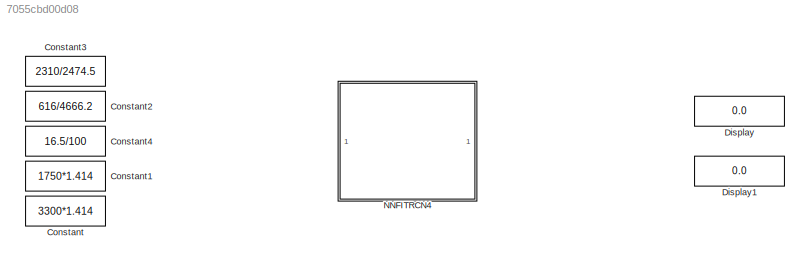
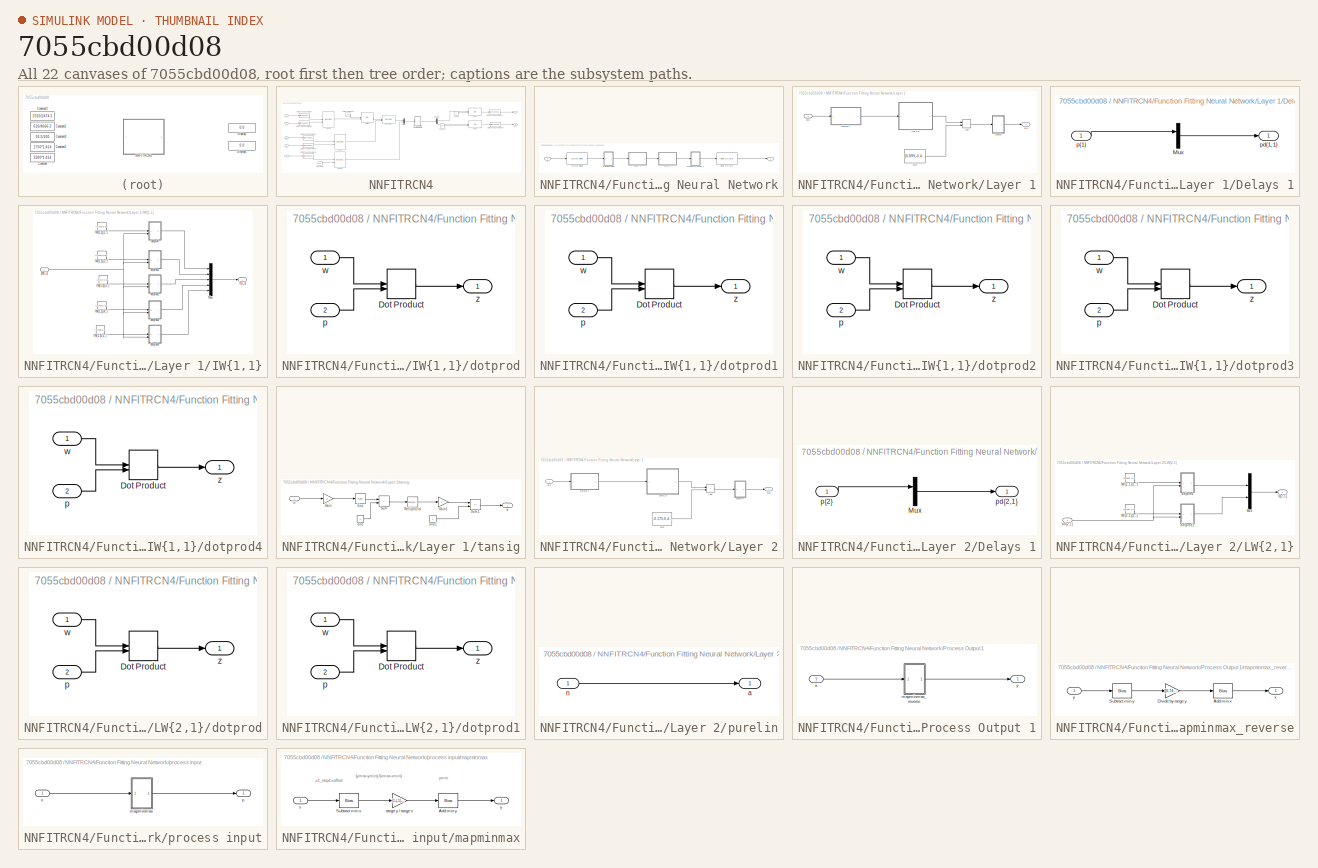
[diagram: thumbnail index - all 22 canvases of the model, root first then tree order]
MODEL slx_7055cbd00d08
KIND model
CONFIG AbsTol = auto
CONFIG EnableMultiTasking = off
CONFIG FixedStep = 1e-7
CONFIG MaxStep = auto
CONFIG MinStep = auto
CONFIG RelTol = 1e-3
CONFIG SampleTimeConstraint = Unconstrained
CONFIG SolverName = FixedStepAuto
CONFIG StartTime = 0.0
CONFIG StopTime = 10.0
BLOCK [Constant] Constant
  OutDataTypeStr = single
  Value = 3300*1.414
BLOCK [Constant] Constant1
  OutDataTypeStr = single
  Value = 1750*1.414
BLOCK [Constant] Constant2
  OutDataTypeStr = fixdt(1,32,23)
  Value = 616/4666.2
BLOCK [Constant] Constant3
  OutDataTypeStr = fixdt(1,32,23)
  Value = 2310/2474.5
BLOCK [Constant] Constant4
  OutDataTypeStr = fixdt(1,32,23)
  Value = 16.5/100
BLOCK [Display] Display
  Decimation = 1
BLOCK [Display] Display1
  Decimation = 1
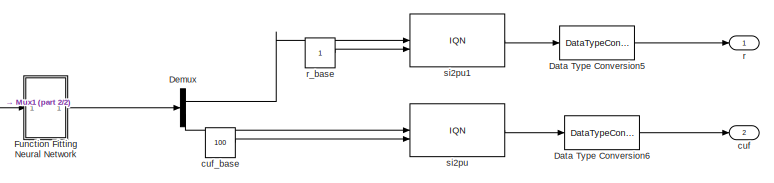
[diagram: NNFITRCN4 - part 1/2, top right region]
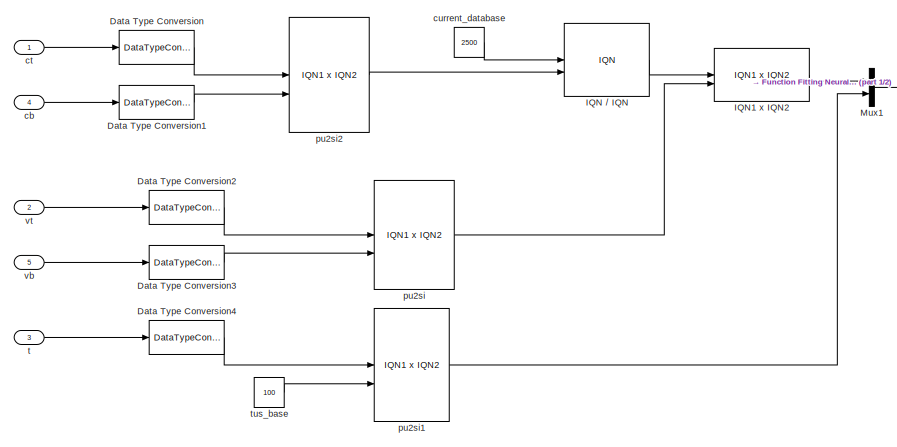
[diagram: NNFITRCN4 - part 2/2, left side, full height]
BLOCK [SubSystem] NNFITRCN4
BLOCK [DataTypeConversion] NNFITRCN4/Data Type Conversion
  OutDataTypeStr = fixdt(1,32,12)
  RndMeth = Floor
  SaturateOnIntegerOverflow = off
BLOCK [DataTypeConversion] NNFITRCN4/Data Type Conversion1
  OutDataTypeStr = fixdt(1,32,12)
  RndMeth = Floor
  SaturateOnIntegerOverflow = off
BLOCK [DataTypeConversion] NNFITRCN4/Data Type Conversion2
  OutDataTypeStr = fixdt(1,32,12)
  RndMeth = Floor
  SaturateOnIntegerOverflow = off
BLOCK [DataTypeConversion] NNFITRCN4/Data Type Conversion3
  OutDataTypeStr = fixdt(1,32,12)
  RndMeth = Floor
  SaturateOnIntegerOverflow = off
BLOCK [DataTypeConversion] NNFITRCN4/Data Type Conversion4
  OutDataTypeStr = fixdt(1,32,12)
  RndMeth = Floor
  SaturateOnIntegerOverflow = off
BLOCK [DataTypeConversion] NNFITRCN4/Data Type Conversion5
  OutDataTypeStr = fixdt(1,32,23)
  RndMeth = Floor
  SaturateOnIntegerOverflow = off
BLOCK [DataTypeConversion] NNFITRCN4/Data Type Conversion6
  OutDataTypeStr = fixdt(1,32,23)
  RndMeth = Floor
  SaturateOnIntegerOverflow = off
BLOCK [Demux] NNFITRCN4/Demux
  Outputs = 2
BLOCK [SubSystem] NNFITRCN4/Function Fitting Neural Network
BLOCK [Reference] NNFITRCN4/Function Fitting Neural Network/Float to IQN  REF=tiiqmathlib/Float to IQN
  SourceBlock = tiiqmathlib/Float to IQN
  SourceType = Float to IQN
BLOCK [Reference] NNFITRCN4/Function Fitting Neural Network/IQN to Float  REF=tiiqmathlib/IQN to Float
  SourceBlock = tiiqmathlib/IQN to Float
  SourceType = IQN to Float
BLOCK [SubSystem] NNFITRCN4/Function Fitting Neural Network/Layer 1
BLOCK [Sum] NNFITRCN4/Function Fitting Neural Network/Layer 1/Add
  IconShape = rectangular
BLOCK [SubSystem] NNFITRCN4/Function Fitting Neural Network/Layer 1/Delays 1
BLOCK [Mux] NNFITRCN4/Function Fitting Neural Network/Layer 1/Delays 1/Mux
  DisplayOption = bar
  Inputs = 1
BLOCK [Outport] NNFITRCN4/Function Fitting Neural Network/Layer 1/Delays 1/pd{1,1}
  OutDataTypeStr = single
BLOCK [Inport] NNFITRCN4/Function Fitting Neural Network/Layer 1/Delays 1/p{1}
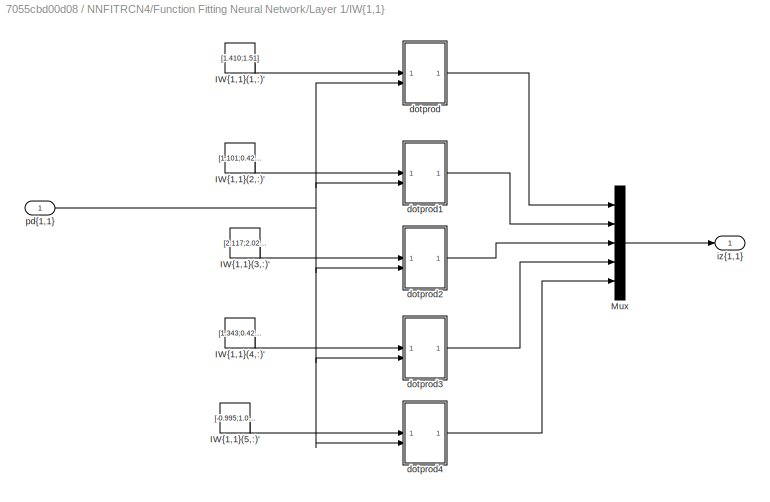
BLOCK [SubSystem] NNFITRCN4/Function Fitting Neural Network/Layer 1/IW{1,1}
BLOCK [Constant] NNFITRCN4/Function Fitting Neural Network/Layer 1/IW{1,1}/IW{1,1}(1,:)'
  OutDataTypeStr = single
  Value = [1.410;1.51]
BLOCK [Constant] NNFITRCN4/Function Fitting Neural Network/Layer 1/IW{1,1}/IW{1,1}(2,:)'
  OutDataTypeStr = single
  Value = [1.101;0.422]
BLOCK [Constant] NNFITRCN4/Function Fitting Neural Network/Layer 1/IW{1,1}/IW{1,1}(3,:)'
  OutDataTypeStr = single
  Value = [2.117;2.028]
BLOCK [Constant] NNFITRCN4/Function Fitting Neural Network/Layer 1/IW{1,1}/IW{1,1}(4,:)'
  OutDataTypeStr = single
  Value = [1.343;0.426]
BLOCK [Constant] NNFITRCN4/Function Fitting Neural Network/Layer 1/IW{1,1}/IW{1,1}(5,:)'
  OutDataTypeStr = single
  Value = [-0.995;1.015]
BLOCK [Mux] NNFITRCN4/Function Fitting Neural Network/Layer 1/IW{1,1}/Mux
  DisplayOption = bar
  Inputs = 5
BLOCK [SubSystem] NNFITRCN4/Function Fitting Neural Network/Layer 1/IW{1,1}/dotprod
BLOCK [DotProduct] NNFITRCN4/Function Fitting Neural Network/Layer 1/IW{1,1}/dotprod/Dot Product
  OutDataTypeStr = Inherit: Inherit via internal rule
BLOCK [Inport] NNFITRCN4/Function Fitting Neural Network/Layer 1/IW{1,1}/dotprod/p
  Port = 2
BLOCK [Inport] NNFITRCN4/Function Fitting Neural Network/Layer 1/IW{1,1}/dotprod/w
BLOCK [Outport] NNFITRCN4/Function Fitting Neural Network/Layer 1/IW{1,1}/dotprod/z
  VectorParamsAs1DForOutWhenUnconnected = off
BLOCK [SubSystem] NNFITRCN4/Function Fitting Neural Network/Layer 1/IW{1,1}/dotprod1
BLOCK [DotProduct] NNFITRCN4/Function Fitting Neural Network/Layer 1/IW{1,1}/dotprod1/Dot Product
  OutDataTypeStr = Inherit: Inherit via internal rule
BLOCK [Inport] NNFITRCN4/Function Fitting Neural Network/Layer 1/IW{1,1}/dotprod1/p
  Port = 2
BLOCK [Inport] NNFITRCN4/Function Fitting Neural Network/Layer 1/IW{1,1}/dotprod1/w
BLOCK [Outport] NNFITRCN4/Function Fitting Neural Network/Layer 1/IW{1,1}/dotprod1/z
  VectorParamsAs1DForOutWhenUnconnected = off
BLOCK [SubSystem] NNFITRCN4/Function Fitting Neural Network/Layer 1/IW{1,1}/dotprod2
BLOCK [DotProduct] NNFITRCN4/Function Fitting Neural Network/Layer 1/IW{1,1}/dotprod2/Dot Product
  OutDataTypeStr = Inherit: Inherit via internal rule
BLOCK [Inport] NNFITRCN4/Function Fitting Neural Network/Layer 1/IW{1,1}/dotprod2/p
  Port = 2
BLOCK [Inport] NNFITRCN4/Function Fitting Neural Network/Layer 1/IW{1,1}/dotprod2/w
BLOCK [Outport] NNFITRCN4/Function Fitting Neural Network/Layer 1/IW{1,1}/dotprod2/z
  VectorParamsAs1DForOutWhenUnconnected = off
BLOCK [SubSystem] NNFITRCN4/Function Fitting Neural Network/Layer 1/IW{1,1}/dotprod3
BLOCK [DotProduct] NNFITRCN4/Function Fitting Neural Network/Layer 1/IW{1,1}/dotprod3/Dot Product
  OutDataTypeStr = Inherit: Inherit via internal rule
BLOCK [Inport] NNFITRCN4/Function Fitting Neural Network/Layer 1/IW{1,1}/dotprod3/p
  Port = 2
BLOCK [Inport] NNFITRCN4/Function Fitting Neural Network/Layer 1/IW{1,1}/dotprod3/w
BLOCK [Outport] NNFITRCN4/Function Fitting Neural Network/Layer 1/IW{1,1}/dotprod3/z
  VectorParamsAs1DForOutWhenUnconnected = off
BLOCK [SubSystem] NNFITRCN4/Function Fitting Neural Network/Layer 1/IW{1,1}/dotprod4
BLOCK [DotProduct] NNFITRCN4/Function Fitting Neural Network/Layer 1/IW{1,1}/dotprod4/Dot Product
  OutDataTypeStr = Inherit: Inherit via internal rule
BLOCK [Inport] NNFITRCN4/Function Fitting Neural Network/Layer 1/IW{1,1}/dotprod4/p
  Port = 2
BLOCK [Inport] NNFITRCN4/Function Fitting Neural Network/Layer 1/IW{1,1}/dotprod4/w
  OutDataTypeStr = single
BLOCK [Outport] NNFITRCN4/Function Fitting Neural Network/Layer 1/IW{1,1}/dotprod4/z
  VectorParamsAs1DForOutWhenUnconnected = off
BLOCK [Outport] NNFITRCN4/Function Fitting Neural Network/Layer 1/IW{1,1}/iz{1,1}
BLOCK [Inport] NNFITRCN4/Function Fitting Neural Network/Layer 1/IW{1,1}/pd{1,1}
BLOCK [Outport] NNFITRCN4/Function Fitting Neural Network/Layer 1/a{1}
BLOCK [Constant] NNFITRCN4/Function Fitting Neural Network/Layer 1/b{1}
  OutDataTypeStr = single
  Value = [0.899;-0.436;-0.519;1.468;-0.889]
BLOCK [Inport] NNFITRCN4/Function Fitting Neural Network/Layer 1/p{1}
BLOCK [SubSystem] NNFITRCN4/Function Fitting Neural Network/Layer 1/tansig
BLOCK [Math] NNFITRCN4/Function Fitting Neural Network/Layer 1/tansig/Exp
  SignedPower = on
BLOCK [Gain] NNFITRCN4/Function Fitting Neural Network/Layer 1/tansig/Gain
  Gain = -2
  OutDataTypeStr = Inherit: Same as input
  ParamDataTypeStr = Inherit: Same as input
  SaturateOnIntegerOverflow = on
BLOCK [Gain] NNFITRCN4/Function Fitting Neural Network/Layer 1/tansig/Gain1
  Gain = 2
  OutDataTypeStr = Inherit: Same as input
  ParamDataTypeStr = Inherit: Same as input
  SaturateOnIntegerOverflow = on
BLOCK [Math] NNFITRCN4/Function Fitting Neural Network/Layer 1/tansig/Reciprocal
  Operator = reciprocal
  SignedPower = on
BLOCK [Sum] NNFITRCN4/Function Fitting Neural Network/Layer 1/tansig/Sum
  IconShape = rectangular
  InputSameDT = on
  OutDataTypeStr = Inherit: Same as first input
  SaturateOnIntegerOverflow = on
BLOCK [Sum] NNFITRCN4/Function Fitting Neural Network/Layer 1/tansig/Sum1
  IconShape = rectangular
  InputSameDT = on
  Inputs = +-
  OutDataTypeStr = Inherit: Same as first input
  SaturateOnIntegerOverflow = on
BLOCK [Outport] NNFITRCN4/Function Fitting Neural Network/Layer 1/tansig/a
  InitialOutput = 0
  OutDataTypeStr = single
  VectorParamsAs1DForOutWhenUnconnected = off
BLOCK [Inport] NNFITRCN4/Function Fitting Neural Network/Layer 1/tansig/n
  OutDataTypeStr = single
BLOCK [Constant] NNFITRCN4/Function Fitting Neural Network/Layer 1/tansig/one
  OutDataTypeStr = single
BLOCK [Constant] NNFITRCN4/Function Fitting Neural Network/Layer 1/tansig/one1
  OutDataTypeStr = single
BLOCK [SubSystem] NNFITRCN4/Function Fitting Neural Network/Layer 2
BLOCK [Sum] NNFITRCN4/Function Fitting Neural Network/Layer 2/Add
  IconShape = rectangular
BLOCK [SubSystem] NNFITRCN4/Function Fitting Neural Network/Layer 2/Delays 1
BLOCK [Mux] NNFITRCN4/Function Fitting Neural Network/Layer 2/Delays 1/Mux
  DisplayOption = bar
  Inputs = 1
BLOCK [Outport] NNFITRCN4/Function Fitting Neural Network/Layer 2/Delays 1/pd{2,1}
  OutDataTypeStr = single
BLOCK [Inport] NNFITRCN4/Function Fitting Neural Network/Layer 2/Delays 1/p{2}
BLOCK [SubSystem] NNFITRCN4/Function Fitting Neural Network/Layer 2/LW{2,1}
BLOCK [Constant] NNFITRCN4/Function Fitting Neural Network/Layer 2/LW{2,1}/IW{2,1}(1,:)'
  OutDataTypeStr = single
  Value = [0.509;-0.139;0.876;0.0755;-0.225]
BLOCK [Constant] NNFITRCN4/Function Fitting Neural Network/Layer 2/LW{2,1}/IW{2,1}(2,:)'
  OutDataTypeStr = single
  Value = [0.791;-1.476;0.498;-1.445;0.388]
BLOCK [Mux] NNFITRCN4/Function Fitting Neural Network/Layer 2/LW{2,1}/Mux
  DisplayOption = bar
  Inputs = 2
BLOCK [Inport] NNFITRCN4/Function Fitting Neural Network/Layer 2/LW{2,1}/ad{2,1}
BLOCK [SubSystem] NNFITRCN4/Function Fitting Neural Network/Layer 2/LW{2,1}/dotprod
BLOCK [DotProduct] NNFITRCN4/Function Fitting Neural Network/Layer 2/LW{2,1}/dotprod/Dot Product
  OutDataTypeStr = Inherit: Inherit via internal rule
BLOCK [Inport] NNFITRCN4/Function Fitting Neural Network/Layer 2/LW{2,1}/dotprod/p
  Port = 2
BLOCK [Inport] NNFITRCN4/Function Fitting Neural Network/Layer 2/LW{2,1}/dotprod/w
BLOCK [Outport] NNFITRCN4/Function Fitting Neural Network/Layer 2/LW{2,1}/dotprod/z
  VectorParamsAs1DForOutWhenUnconnected = off
BLOCK [SubSystem] NNFITRCN4/Function Fitting Neural Network/Layer 2/LW{2,1}/dotprod1
BLOCK [DotProduct] NNFITRCN4/Function Fitting Neural Network/Layer 2/LW{2,1}/dotprod1/Dot Product
  OutDataTypeStr = Inherit: Inherit via internal rule
BLOCK [Inport] NNFITRCN4/Function Fitting Neural Network/Layer 2/LW{2,1}/dotprod1/p
  Port = 2
BLOCK [Inport] NNFITRCN4/Function Fitting Neural Network/Layer 2/LW{2,1}/dotprod1/w
  OutDataTypeStr = single
BLOCK [Outport] NNFITRCN4/Function Fitting Neural Network/Layer 2/LW{2,1}/dotprod1/z
  VectorParamsAs1DForOutWhenUnconnected = off
BLOCK [Outport] NNFITRCN4/Function Fitting Neural Network/Layer 2/LW{2,1}/lz{2,1}
BLOCK [Inport] NNFITRCN4/Function Fitting Neural Network/Layer 2/a{1}
BLOCK [Outport] NNFITRCN4/Function Fitting Neural Network/Layer 2/a{2}
BLOCK [Constant] NNFITRCN4/Function Fitting Neural Network/Layer 2/b{2}
  OutDataTypeStr = single
  Value = [-0.175;0.419]
BLOCK [SubSystem] NNFITRCN4/Function Fitting Neural Network/Layer 2/purelin
BLOCK [Outport] NNFITRCN4/Function Fitting Neural Network/Layer 2/purelin/a
  InitialOutput = 0
  VectorParamsAs1DForOutWhenUnconnected = off
BLOCK [Inport] NNFITRCN4/Function Fitting Neural Network/Layer 2/purelin/n
BLOCK [SubSystem] NNFITRCN4/Function Fitting Neural Network/Process Output 1
BLOCK [Inport] NNFITRCN4/Function Fitting Neural Network/Process Output 1/a
BLOCK [SubSystem] NNFITRCN4/Function Fitting Neural Network/Process Output 1/mapminmax_reverse
BLOCK [Bias] NNFITRCN4/Function Fitting Neural Network/Process Output 1/mapminmax_reverse/Add min x
  Bias = [0.25;20]
  SaturateOnIntegerOverflow = off
BLOCK [Gain] NNFITRCN4/Function Fitting Neural Network/Process Output 1/mapminmax_reverse/Divide by range y
  Gain = ([0.74;49]-[0.25;20])./(1-(-1))
BLOCK [Bias] NNFITRCN4/Function Fitting Neural Network/Process Output 1/mapminmax_reverse/Subtract min y
  Bias = -(-1)
  SaturateOnIntegerOverflow = off
BLOCK [Outport] NNFITRCN4/Function Fitting Neural Network/Process Output 1/mapminmax_reverse/x
  VectorParamsAs1DForOutWhenUnconnected = off
BLOCK [Inport] NNFITRCN4/Function Fitting Neural Network/Process Output 1/mapminmax_reverse/y
BLOCK [Outport] NNFITRCN4/Function Fitting Neural Network/Process Output 1/y
  VectorParamsAs1DForOutWhenUnconnected = off
BLOCK [SubSystem] NNFITRCN4/Function Fitting Neural Network/process input
BLOCK [SubSystem] NNFITRCN4/Function Fitting Neural Network/process input/mapminmax
BLOCK [Bias] NNFITRCN4/Function Fitting Neural Network/process input/mapminmax/Add min y
  Bias = -1
  SaturateOnIntegerOverflow = off
BLOCK [Bias] NNFITRCN4/Function Fitting Neural Network/process input/mapminmax/Subtract min x
  Bias = -[449.605;8.853]
BLOCK [Gain] NNFITRCN4/Function Fitting Neural Network/process input/mapminmax/range y // range x
  Gain = (1-(-1))./([855.950;21.168]-[449.605;8.853])
BLOCK [Inport] NNFITRCN4/Function Fitting Neural Network/process input/mapminmax/x
BLOCK [Outport] NNFITRCN4/Function Fitting Neural Network/process input/mapminmax/y
  VectorParamsAs1DForOutWhenUnconnected = off
BLOCK [Outport] NNFITRCN4/Function Fitting Neural Network/process input/p
  VectorParamsAs1DForOutWhenUnconnected = off
BLOCK [Inport] NNFITRCN4/Function Fitting Neural Network/process input/x
BLOCK [Inport] NNFITRCN4/Function Fitting Neural Network/x
  OutDataTypeStr = fixdt(1,32,12)
BLOCK [Outport] NNFITRCN4/Function Fitting Neural Network/y
  LockScale = on
  OutDataTypeStr = fixdt(1,32,12)
BLOCK [Reference] NNFITRCN4/IQN // IQN  REF=tiiqmathlib/IQN // IQN
  SourceBlock = tiiqmathlib/IQN // IQN
  SourceType = Division IQN
BLOCK [Reference] NNFITRCN4/IQN1 x IQN2  REF=tiiqmathlib/IQN1 x IQN2
  SourceBlock = tiiqmathlib/IQN1 x IQN2
  SourceType = IQN1 x IQN2
BLOCK [Mux] NNFITRCN4/Mux1
  DisplayOption = bar
  Inputs = 2
BLOCK [Inport] NNFITRCN4/cb
  OutDataTypeStr = single
  Port = 4
BLOCK [Inport] NNFITRCN4/ct
  OutDataTypeStr = fixdt(1,32,23)
BLOCK [Outport] NNFITRCN4/cuf
  OutDataTypeStr = fixdt(1,32,23)
  Port = 2
BLOCK [Constant] NNFITRCN4/cuf_base
  LockScale = on
  OutDataTypeStr = fixdt(1,32,12)
  Value = 100
BLOCK [Constant] NNFITRCN4/current_database
  LockScale = on
  OutDataTypeStr = fixdt(1,32,12)
  Value = 2500
BLOCK [Reference] NNFITRCN4/pu2si  REF=tiiqmathlib/IQN1 x IQN2
  SourceBlock = tiiqmathlib/IQN1 x IQN2
  SourceType = IQN1 x IQN2
BLOCK [Reference] NNFITRCN4/pu2si1  REF=tiiqmathlib/IQN1 x IQN2
  SourceBlock = tiiqmathlib/IQN1 x IQN2
  SourceType = IQN1 x IQN2
BLOCK [Reference] NNFITRCN4/pu2si2  REF=tiiqmathlib/IQN1 x IQN2
  SourceBlock = tiiqmathlib/IQN1 x IQN2
  SourceType = IQN1 x IQN2
BLOCK [Outport] NNFITRCN4/r
  OutDataTypeStr = fixdt(1,32,23)
BLOCK [Constant] NNFITRCN4/r_base
  LockScale = on
  OutDataTypeStr = fixdt(1,32,12)
BLOCK [Reference] NNFITRCN4/si2pu  REF=tiiqmathlib/IQN // IQN
  SourceBlock = tiiqmathlib/IQN // IQN
  SourceType = Division IQN
BLOCK [Reference] NNFITRCN4/si2pu1  REF=tiiqmathlib/IQN // IQN
  SourceBlock = tiiqmathlib/IQN // IQN
  SourceType = Division IQN
BLOCK [Inport] NNFITRCN4/t
  OutDataTypeStr = fixdt(1,32,23)
  Port = 3
BLOCK [Constant] NNFITRCN4/tus_base
  LockScale = on
  OutDataTypeStr = fixdt(1,32,12)
  Value = 100
BLOCK [Inport] NNFITRCN4/vb
  OutDataTypeStr = single
  Port = 5
BLOCK [Inport] NNFITRCN4/vt
  OutDataTypeStr = fixdt(1,32,23)
  Port = 2
ANNOTATION NNFITRCN4/Function Fitting Neural Network/process input/mapminmax: (ymax-ymin)./(xmax-xmin)
ANNOTATION NNFITRCN4/Function Fitting Neural Network/process input/mapminmax: -x1_step1.xoffset
ANNOTATION NNFITRCN4/Function Fitting Neural Network/process input/mapminmax: ymin
LINE NNFITRCN4/Data Type Conversion1:1 -> NNFITRCN4/pu2si2:2
LINE NNFITRCN4/Data Type Conversion2:1 -> NNFITRCN4/pu2si:1
LINE NNFITRCN4/Data Type Conversion3:1 -> NNFITRCN4/pu2si:2
LINE NNFITRCN4/Data Type Conversion4:1 -> NNFITRCN4/pu2si1:1
LINE NNFITRCN4/Data Type Conversion5:1 -> NNFITRCN4/r:1
LINE NNFITRCN4/Data Type Conversion6:1 -> NNFITRCN4/cuf:1
LINE NNFITRCN4/Data Type Conversion:1 -> NNFITRCN4/pu2si2:1
LINE NNFITRCN4/Demux:1 -> NNFITRCN4/si2pu1:1
LINE NNFITRCN4/Demux:2 -> NNFITRCN4/si2pu:1
LINE NNFITRCN4/Function Fitting Neural Network/Float to IQN:1 -> NNFITRCN4/Function Fitting Neural Network/y:1
LINE NNFITRCN4/Function Fitting Neural Network/IQN to Float:1 -> NNFITRCN4/Function Fitting Neural Network/process input:1
LINE NNFITRCN4/Function Fitting Neural Network/Layer 1/Add:1 -> NNFITRCN4/Function Fitting Neural Network/Layer 1/tansig:1
LINE NNFITRCN4/Function Fitting Neural Network/Layer 1/Delays 1/Mux:1 -> NNFITRCN4/Function Fitting Neural Network/Layer 1/Delays 1/pd{1,1}:1
LINE NNFITRCN4/Function Fitting Neural Network/Layer 1/Delays 1/p{1}:1 -> NNFITRCN4/Function Fitting Neural Network/Layer 1/Delays 1/Mux:1
LINE NNFITRCN4/Function Fitting Neural Network/Layer 1/Delays 1:1 -> NNFITRCN4/Function Fitting Neural Network/Layer 1/IW{1,1}:1
LINE NNFITRCN4/Function Fitting Neural Network/Layer 1/IW{1,1}/IW{1,1}(1,:)':1 -> NNFITRCN4/Function Fitting Neural Network/Layer 1/IW{1,1}/dotprod:1
LINE NNFITRCN4/Function Fitting Neural Network/Layer 1/IW{1,1}/IW{1,1}(2,:)':1 -> NNFITRCN4/Function Fitting Neural Network/Layer 1/IW{1,1}/dotprod1:1
LINE NNFITRCN4/Function Fitting Neural Network/Layer 1/IW{1,1}/IW{1,1}(3,:)':1 -> NNFITRCN4/Function Fitting Neural Network/Layer 1/IW{1,1}/dotprod2:1
LINE NNFITRCN4/Function Fitting Neural Network/Layer 1/IW{1,1}/IW{1,1}(4,:)':1 -> NNFITRCN4/Function Fitting Neural Network/Layer 1/IW{1,1}/dotprod3:1
LINE NNFITRCN4/Function Fitting Neural Network/Layer 1/IW{1,1}/IW{1,1}(5,:)':1 -> NNFITRCN4/Function Fitting Neural Network/Layer 1/IW{1,1}/dotprod4:1
LINE NNFITRCN4/Function Fitting Neural Network/Layer 1/IW{1,1}/Mux:1 -> NNFITRCN4/Function Fitting Neural Network/Layer 1/IW{1,1}/iz{1,1}:1
LINE NNFITRCN4/Function Fitting Neural Network/Layer 1/IW{1,1}/dotprod/Dot Product:1 -> NNFITRCN4/Function Fitting Neural Network/Layer 1/IW{1,1}/dotprod/z:1
LINE NNFITRCN4/Function Fitting Neural Network/Layer 1/IW{1,1}/dotprod/p:1 -> NNFITRCN4/Function Fitting Neural Network/Layer 1/IW{1,1}/dotprod/Dot Product:2
LINE NNFITRCN4/Function Fitting Neural Network/Layer 1/IW{1,1}/dotprod/w:1 -> NNFITRCN4/Function Fitting Neural Network/Layer 1/IW{1,1}/dotprod/Dot Product:1
LINE NNFITRCN4/Function Fitting Neural Network/Layer 1/IW{1,1}/dotprod1/Dot Product:1 -> NNFITRCN4/Function Fitting Neural Network/Layer 1/IW{1,1}/dotprod1/z:1
LINE NNFITRCN4/Function Fitting Neural Network/Layer 1/IW{1,1}/dotprod1/p:1 -> NNFITRCN4/Function Fitting Neural Network/Layer 1/IW{1,1}/dotprod1/Dot Product:2
LINE NNFITRCN4/Function Fitting Neural Network/Layer 1/IW{1,1}/dotprod1/w:1 -> NNFITRCN4/Function Fitting Neural Network/Layer 1/IW{1,1}/dotprod1/Dot Product:1
LINE NNFITRCN4/Function Fitting Neural Network/Layer 1/IW{1,1}/dotprod1:1 -> NNFITRCN4/Function Fitting Neural Network/Layer 1/IW{1,1}/Mux:2
LINE NNFITRCN4/Function Fitting Neural Network/Layer 1/IW{1,1}/dotprod2/Dot Product:1 -> NNFITRCN4/Function Fitting Neural Network/Layer 1/IW{1,1}/dotprod2/z:1
LINE NNFITRCN4/Function Fitting Neural Network/Layer 1/IW{1,1}/dotprod2/p:1 -> NNFITRCN4/Function Fitting Neural Network/Layer 1/IW{1,1}/dotprod2/Dot Product:2
LINE NNFITRCN4/Function Fitting Neural Network/Layer 1/IW{1,1}/dotprod2/w:1 -> NNFITRCN4/Function Fitting Neural Network/Layer 1/IW{1,1}/dotprod2/Dot Product:1
LINE NNFITRCN4/Function Fitting Neural Network/Layer 1/IW{1,1}/dotprod2:1 -> NNFITRCN4/Function Fitting Neural Network/Layer 1/IW{1,1}/Mux:3
LINE NNFITRCN4/Function Fitting Neural Network/Layer 1/IW{1,1}/dotprod3/Dot Product:1 -> NNFITRCN4/Function Fitting Neural Network/Layer 1/IW{1,1}/dotprod3/z:1
LINE NNFITRCN4/Function Fitting Neural Network/Layer 1/IW{1,1}/dotprod3/p:1 -> NNFITRCN4/Function Fitting Neural Network/Layer 1/IW{1,1}/dotprod3/Dot Product:2
LINE NNFITRCN4/Function Fitting Neural Network/Layer 1/IW{1,1}/dotprod3/w:1 -> NNFITRCN4/Function Fitting Neural Network/Layer 1/IW{1,1}/dotprod3/Dot Product:1
LINE NNFITRCN4/Function Fitting Neural Network/Layer 1/IW{1,1}/dotprod3:1 -> NNFITRCN4/Function Fitting Neural Network/Layer 1/IW{1,1}/Mux:4
LINE NNFITRCN4/Function Fitting Neural Network/Layer 1/IW{1,1}/dotprod4/Dot Product:1 -> NNFITRCN4/Function Fitting Neural Network/Layer 1/IW{1,1}/dotprod4/z:1
LINE NNFITRCN4/Function Fitting Neural Network/Layer 1/IW{1,1}/dotprod4/p:1 -> NNFITRCN4/Function Fitting Neural Network/Layer 1/IW{1,1}/dotprod4/Dot Product:2
LINE NNFITRCN4/Function Fitting Neural Network/Layer 1/IW{1,1}/dotprod4/w:1 -> NNFITRCN4/Function Fitting Neural Network/Layer 1/IW{1,1}/dotprod4/Dot Product:1
LINE NNFITRCN4/Function Fitting Neural Network/Layer 1/IW{1,1}/dotprod4:1 -> NNFITRCN4/Function Fitting Neural Network/Layer 1/IW{1,1}/Mux:5
LINE NNFITRCN4/Function Fitting Neural Network/Layer 1/IW{1,1}/dotprod:1 -> NNFITRCN4/Function Fitting Neural Network/Layer 1/IW{1,1}/Mux:1
NET NNFITRCN4/Function Fitting Neural Network/Layer 1/IW{1,1}/pd{1,1}:1 -> NNFITRCN4/Function Fitting Neural Network/Layer 1/IW{1,1}/dotprod1:2, NNFITRCN4/Function Fitting Neural Network/Layer 1/IW{1,1}/dotprod2:2, NNFITRCN4/Function Fitting Neural Network/Layer 1/IW{1,1}/dotprod3:2, NNFITRCN4/Function Fitting Neural Network/Layer 1/IW{1,1}/dotprod4:2, NNFITRCN4/Function Fitting Neural Network/Layer 1/IW{1,1}/dotprod:2
LINE NNFITRCN4/Function Fitting Neural Network/Layer 1/IW{1,1}:1 -> NNFITRCN4/Function Fitting Neural Network/Layer 1/Add:1
LINE NNFITRCN4/Function Fitting Neural Network/Layer 1/b{1}:1 -> NNFITRCN4/Function Fitting Neural Network/Layer 1/Add:2
LINE NNFITRCN4/Function Fitting Neural Network/Layer 1/p{1}:1 -> NNFITRCN4/Function Fitting Neural Network/Layer 1/Delays 1:1
LINE NNFITRCN4/Function Fitting Neural Network/Layer 1/tansig/Exp:1 -> NNFITRCN4/Function Fitting Neural Network/Layer 1/tansig/Sum:1
LINE NNFITRCN4/Function Fitting Neural Network/Layer 1/tansig/Gain1:1 -> NNFITRCN4/Function Fitting Neural Network/Layer 1/tansig/Sum1:1
LINE NNFITRCN4/Function Fitting Neural Network/Layer 1/tansig/Gain:1 -> NNFITRCN4/Function Fitting Neural Network/Layer 1/tansig/Exp:1
LINE NNFITRCN4/Function Fitting Neural Network/Layer 1/tansig/Reciprocal:1 -> NNFITRCN4/Function Fitting Neural Network/Layer 1/tansig/Gain1:1
LINE NNFITRCN4/Function Fitting Neural Network/Layer 1/tansig/Sum1:1 -> NNFITRCN4/Function Fitting Neural Network/Layer 1/tansig/a:1
LINE NNFITRCN4/Function Fitting Neural Network/Layer 1/tansig/Sum:1 -> NNFITRCN4/Function Fitting Neural Network/Layer 1/tansig/Reciprocal:1
LINE NNFITRCN4/Function Fitting Neural Network/Layer 1/tansig/n:1 -> NNFITRCN4/Function Fitting Neural Network/Layer 1/tansig/Gain:1
LINE NNFITRCN4/Function Fitting Neural Network/Layer 1/tansig/one1:1 -> NNFITRCN4/Function Fitting Neural Network/Layer 1/tansig/Sum1:2
LINE NNFITRCN4/Function Fitting Neural Network/Layer 1/tansig/one:1 -> NNFITRCN4/Function Fitting Neural Network/Layer 1/tansig/Sum:2
LINE NNFITRCN4/Function Fitting Neural Network/Layer 1/tansig:1 -> NNFITRCN4/Function Fitting Neural Network/Layer 1/a{1}:1
LINE NNFITRCN4/Function Fitting Neural Network/Layer 1:1 -> NNFITRCN4/Function Fitting Neural Network/Layer 2:1
LINE NNFITRCN4/Function Fitting Neural Network/Layer 2/Add:1 -> NNFITRCN4/Function Fitting Neural Network/Layer 2/purelin:1
LINE NNFITRCN4/Function Fitting Neural Network/Layer 2/Delays 1/Mux:1 -> NNFITRCN4/Function Fitting Neural Network/Layer 2/Delays 1/pd{2,1}:1
LINE NNFITRCN4/Function Fitting Neural Network/Layer 2/Delays 1/p{2}:1 -> NNFITRCN4/Function Fitting Neural Network/Layer 2/Delays 1/Mux:1
LINE NNFITRCN4/Function Fitting Neural Network/Layer 2/Delays 1:1 -> NNFITRCN4/Function Fitting Neural Network/Layer 2/LW{2,1}:1
LINE NNFITRCN4/Function Fitting Neural Network/Layer 2/LW{2,1}/IW{2,1}(1,:)':1 -> NNFITRCN4/Function Fitting Neural Network/Layer 2/LW{2,1}/dotprod:1
LINE NNFITRCN4/Function Fitting Neural Network/Layer 2/LW{2,1}/IW{2,1}(2,:)':1 -> NNFITRCN4/Function Fitting Neural Network/Layer 2/LW{2,1}/dotprod1:1
LINE NNFITRCN4/Function Fitting Neural Network/Layer 2/LW{2,1}/Mux:1 -> NNFITRCN4/Function Fitting Neural Network/Layer 2/LW{2,1}/lz{2,1}:1
NET NNFITRCN4/Function Fitting Neural Network/Layer 2/LW{2,1}/ad{2,1}:1 -> NNFITRCN4/Function Fitting Neural Network/Layer 2/LW{2,1}/dotprod1:2, NNFITRCN4/Function Fitting Neural Network/Layer 2/LW{2,1}/dotprod:2
LINE NNFITRCN4/Function Fitting Neural Network/Layer 2/LW{2,1}/dotprod/Dot Product:1 -> NNFITRCN4/Function Fitting Neural Network/Layer 2/LW{2,1}/dotprod/z:1
LINE NNFITRCN4/Function Fitting Neural Network/Layer 2/LW{2,1}/dotprod/p:1 -> NNFITRCN4/Function Fitting Neural Network/Layer 2/LW{2,1}/dotprod/Dot Product:2
LINE NNFITRCN4/Function Fitting Neural Network/Layer 2/LW{2,1}/dotprod/w:1 -> NNFITRCN4/Function Fitting Neural Network/Layer 2/LW{2,1}/dotprod/Dot Product:1
LINE NNFITRCN4/Function Fitting Neural Network/Layer 2/LW{2,1}/dotprod1/Dot Product:1 -> NNFITRCN4/Function Fitting Neural Network/Layer 2/LW{2,1}/dotprod1/z:1
LINE NNFITRCN4/Function Fitting Neural Network/Layer 2/LW{2,1}/dotprod1/p:1 -> NNFITRCN4/Function Fitting Neural Network/Layer 2/LW{2,1}/dotprod1/Dot Product:2
LINE NNFITRCN4/Function Fitting Neural Network/Layer 2/LW{2,1}/dotprod1/w:1 -> NNFITRCN4/Function Fitting Neural Network/Layer 2/LW{2,1}/dotprod1/Dot Product:1
LINE NNFITRCN4/Function Fitting Neural Network/Layer 2/LW{2,1}/dotprod1:1 -> NNFITRCN4/Function Fitting Neural Network/Layer 2/LW{2,1}/Mux:2
LINE NNFITRCN4/Function Fitting Neural Network/Layer 2/LW{2,1}/dotprod:1 -> NNFITRCN4/Function Fitting Neural Network/Layer 2/LW{2,1}/Mux:1
LINE NNFITRCN4/Function Fitting Neural Network/Layer 2/LW{2,1}:1 -> NNFITRCN4/Function Fitting Neural Network/Layer 2/Add:1
LINE NNFITRCN4/Function Fitting Neural Network/Layer 2/a{1}:1 -> NNFITRCN4/Function Fitting Neural Network/Layer 2/Delays 1:1
LINE NNFITRCN4/Function Fitting Neural Network/Layer 2/b{2}:1 -> NNFITRCN4/Function Fitting Neural Network/Layer 2/Add:2
LINE NNFITRCN4/Function Fitting Neural Network/Layer 2/purelin/n:1 -> NNFITRCN4/Function Fitting Neural Network/Layer 2/purelin/a:1
LINE NNFITRCN4/Function Fitting Neural Network/Layer 2/purelin:1 -> NNFITRCN4/Function Fitting Neural Network/Layer 2/a{2}:1
LINE NNFITRCN4/Function Fitting Neural Network/Layer 2:1 -> NNFITRCN4/Function Fitting Neural Network/Process Output 1:1
LINE NNFITRCN4/Function Fitting Neural Network/Process Output 1/a:1 -> NNFITRCN4/Function Fitting Neural Network/Process Output 1/mapminmax_reverse:1
LINE NNFITRCN4/Function Fitting Neural Network/Process Output 1/mapminmax_reverse/Add min x:1 -> NNFITRCN4/Function Fitting Neural Network/Process Output 1/mapminmax_reverse/x:1
LINE NNFITRCN4/Function Fitting Neural Network/Process Output 1/mapminmax_reverse/Divide by range y:1 -> NNFITRCN4/Function Fitting Neural Network/Process Output 1/mapminmax_reverse/Add min x:1
LINE NNFITRCN4/Function Fitting Neural Network/Process Output 1/mapminmax_reverse/Subtract min y:1 -> NNFITRCN4/Function Fitting Neural Network/Process Output 1/mapminmax_reverse/Divide by range y:1
LINE NNFITRCN4/Function Fitting Neural Network/Process Output 1/mapminmax_reverse/y:1 -> NNFITRCN4/Function Fitting Neural Network/Process Output 1/mapminmax_reverse/Subtract min y:1
LINE NNFITRCN4/Function Fitting Neural Network/Process Output 1/mapminmax_reverse:1 -> NNFITRCN4/Function Fitting Neural Network/Process Output 1/y:1
LINE NNFITRCN4/Function Fitting Neural Network/Process Output 1:1 -> NNFITRCN4/Function Fitting Neural Network/Float to IQN:1
LINE NNFITRCN4/Function Fitting Neural Network/process input/mapminmax/Add min y:1 -> NNFITRCN4/Function Fitting Neural Network/process input/mapminmax/y:1
LINE NNFITRCN4/Function Fitting Neural Network/process input/mapminmax/Subtract min x:1 -> NNFITRCN4/Function Fitting Neural Network/process input/mapminmax/range y // range x:1
LINE NNFITRCN4/Function Fitting Neural Network/process input/mapminmax/range y // range x:1 -> NNFITRCN4/Function Fitting Neural Network/process input/mapminmax/Add min y:1
LINE NNFITRCN4/Function Fitting Neural Network/process input/mapminmax/x:1 -> NNFITRCN4/Function Fitting Neural Network/process input/mapminmax/Subtract min x:1
LINE NNFITRCN4/Function Fitting Neural Network/process input/mapminmax:1 -> NNFITRCN4/Function Fitting Neural Network/process input/p:1
LINE NNFITRCN4/Function Fitting Neural Network/process input/x:1 -> NNFITRCN4/Function Fitting Neural Network/process input/mapminmax:1
LINE NNFITRCN4/Function Fitting Neural Network/process input:1 -> NNFITRCN4/Function Fitting Neural Network/Layer 1:1
LINE NNFITRCN4/Function Fitting Neural Network/x:1 -> NNFITRCN4/Function Fitting Neural Network/IQN to Float:1
LINE NNFITRCN4/Function Fitting Neural Network:1 -> NNFITRCN4/Demux:1
LINE NNFITRCN4/IQN // IQN:1 -> NNFITRCN4/IQN1 x IQN2:1
LINE NNFITRCN4/IQN1 x IQN2:1 -> NNFITRCN4/Mux1:1
LINE NNFITRCN4/Mux1:1 -> NNFITRCN4/Function Fitting Neural Network:1
LINE NNFITRCN4/cb:1 -> NNFITRCN4/Data Type Conversion1:1
LINE NNFITRCN4/ct:1 -> NNFITRCN4/Data Type Conversion:1
LINE NNFITRCN4/cuf_base:1 -> NNFITRCN4/si2pu:2
LINE NNFITRCN4/current_database:1 -> NNFITRCN4/IQN // IQN:1
LINE NNFITRCN4/pu2si1:1 -> NNFITRCN4/Mux1:2
LINE NNFITRCN4/pu2si2:1 -> NNFITRCN4/IQN // IQN:2
LINE NNFITRCN4/pu2si:1 -> NNFITRCN4/IQN1 x IQN2:2
LINE NNFITRCN4/r_base:1 -> NNFITRCN4/si2pu1:2
LINE NNFITRCN4/si2pu1:1 -> NNFITRCN4/Data Type Conversion5:1
LINE NNFITRCN4/si2pu:1 -> NNFITRCN4/Data Type Conversion6:1
LINE NNFITRCN4/t:1 -> NNFITRCN4/Data Type Conversion4:1
LINE NNFITRCN4/tus_base:1 -> NNFITRCN4/pu2si1:2
LINE NNFITRCN4/vb:1 -> NNFITRCN4/Data Type Conversion3:1
LINE NNFITRCN4/vt:1 -> NNFITRCN4/Data Type Conversion2:1
note: NET lines group one-source signal fan-out (src -> all destinations, sorted); 1:1 wires keep LINE
